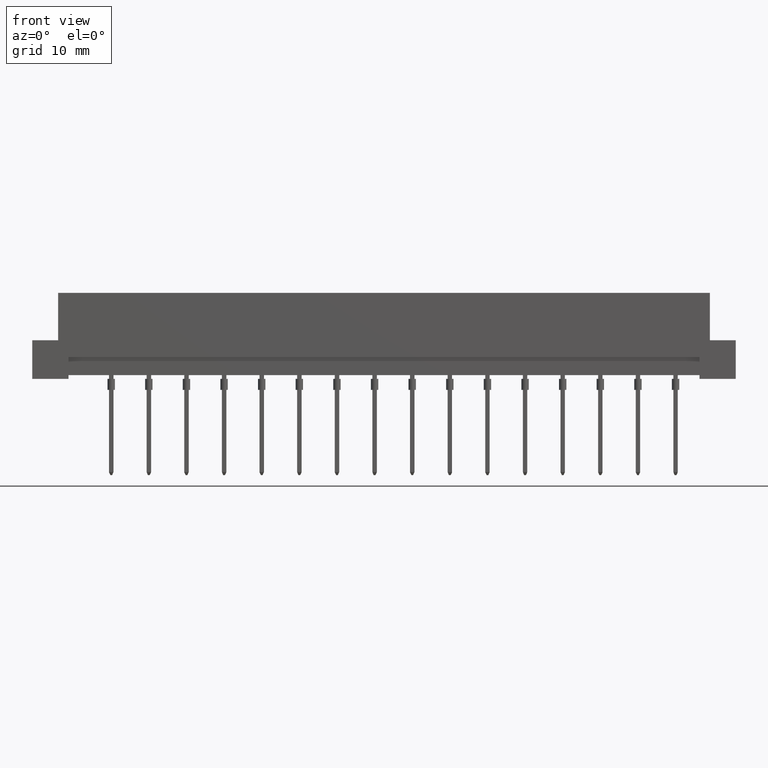
[diagram: clean part render]
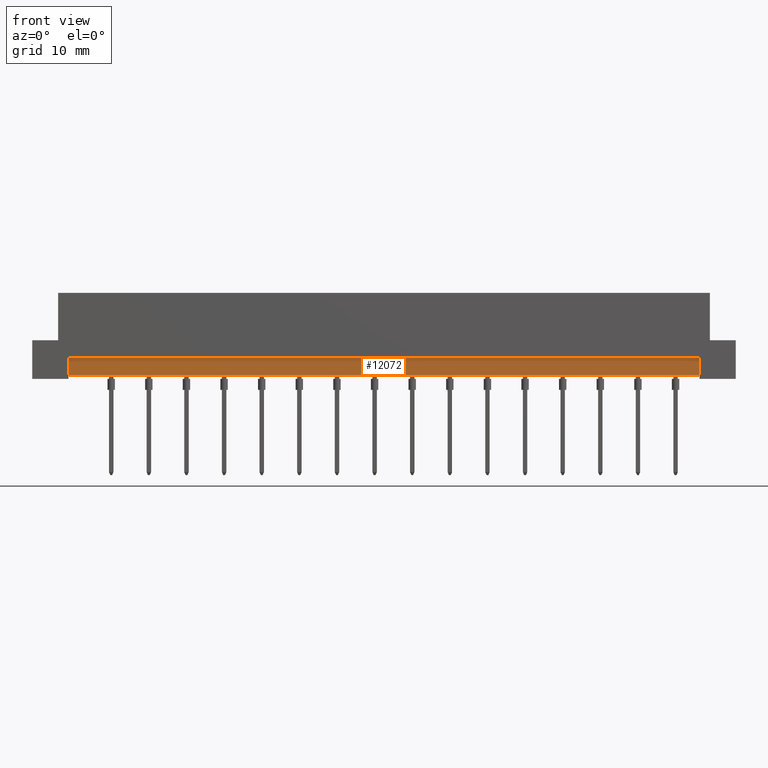
[diagram: same view with one face highlighted and labeled with its STEP entity id]
A machine part, front view. The second image highlights one B-rep face of the part: STEP entity #12072.
In plain terms, the highlighted planar face has unit normal (0, 1, 0).
Its self-contained STEP definition (entity closure, byte-faithful):
#23 = LINE ( 'NONE', #6532, #12807 ) ;
#48 = DIRECTION ( 'NONE',  ( -0.0000000000000000000, -0.0000000000000000000, -1.000000000000000000 ) ) ;
#379 = ORIENTED_EDGE ( 'NONE', *, *, #10369, .F. ) ;
#767 = ORIENTED_EDGE ( 'NONE', *, *, #7761, .T. ) ;
#1329 = DIRECTION ( 'NONE',  ( 1.000000000000000000, -0.0000000000000000000, -0.0000000000000000000 ) ) ;
#1467 = FACE_OUTER_BOUND ( 'NONE', #16488, .T. ) ;
#2675 = CARTESIAN_POINT ( 'NONE',  ( 42.60000000000000142, 1.200000000000000622, 2.899999999999999911 ) ) ;
#2967 = CARTESIAN_POINT ( 'NONE',  ( -42.60000000000000142, 1.200000000000000622, 0.5000000000000000000 ) ) ;
#3808 = CARTESIAN_POINT ( 'NONE',  ( -42.60000000000000142, 1.200000000000000622, 2.899999999999999911 ) ) ;
#4073 = PLANE ( 'NONE',  #7618 ) ;
#4816 = ORIENTED_EDGE ( 'NONE', *, *, #7230, .F. ) ;
#5505 = LINE ( 'NONE', #8185, #11724 ) ;
#6532 = CARTESIAN_POINT ( 'NONE',  ( 42.60000000000000142, 1.200000000000000622, 2.899999999999999911 ) ) ;
#6671 = DIRECTION ( 'NONE',  ( 0.0000000000000000000, 1.000000000000000000, -0.0000000000000000000 ) ) ;
#7230 = EDGE_CURVE ( 'NONE', #15557, #15286, #23, .T. ) ;
#7618 = AXIS2_PLACEMENT_3D ( 'NONE', #2675, #6671, #9423 ) ;
#7761 = EDGE_CURVE ( 'NONE', #15557, #13794, #9000, .T. ) ;
#8185 = CARTESIAN_POINT ( 'NONE',  ( 42.60000000000000142, 1.200000000000000622, 0.5000000000000000000 ) ) ;
#9000 = LINE ( 'NONE', #3808, #9494 ) ;
#9423 = DIRECTION ( 'NONE',  ( 0.0000000000000000000, 0.0000000000000000000, 1.000000000000000000 ) ) ;
#9494 = VECTOR ( 'NONE', #14361, 1000.000000000000000 ) ;
#9511 = CARTESIAN_POINT ( 'NONE',  ( 42.60000000000000142, 1.200000000000000622, 0.5000000000000000000 ) ) ;
#10369 = EDGE_CURVE ( 'NONE', #15286, #12219, #11655, .T. ) ;
#10762 = DIRECTION ( 'NONE',  ( 1.000000000000000000, 0.0000000000000000000, 0.0000000000000000000 ) ) ;
#11042 = EDGE_CURVE ( 'NONE', #13794, #12219, #5505, .T. ) ;
#11269 = CARTESIAN_POINT ( 'NONE',  ( 42.60000000000000142, 1.200000000000000622, 2.899999999999999911 ) ) ;
#11655 = LINE ( 'NONE', #13051, #13936 ) ;
#11724 = VECTOR ( 'NONE', #10762, 1000.000000000000000 ) ;
#12072 = ADVANCED_FACE ( 'NONE', ( #1467 ), #4073, .F. ) ;
#12219 = VERTEX_POINT ( 'NONE', #9511 ) ;
#12807 = VECTOR ( 'NONE', #1329, 1000.000000000000000 ) ;
#13051 = CARTESIAN_POINT ( 'NONE',  ( 42.60000000000000142, 1.200000000000000622, 2.899999999999999911 ) ) ;
#13513 = CARTESIAN_POINT ( 'NONE',  ( -42.60000000000000142, 1.200000000000000622, 2.899999999999999911 ) ) ;
#13794 = VERTEX_POINT ( 'NONE', #2967 ) ;
#13936 = VECTOR ( 'NONE', #48, 1000.000000000000000 ) ;
#14235 = ORIENTED_EDGE ( 'NONE', *, *, #11042, .T. ) ;
#14361 = DIRECTION ( 'NONE',  ( -0.0000000000000000000, -0.0000000000000000000, -1.000000000000000000 ) ) ;
#15286 = VERTEX_POINT ( 'NONE', #11269 ) ;
#15557 = VERTEX_POINT ( 'NONE', #13513 ) ;
#16488 = EDGE_LOOP ( 'NONE', ( #14235, #379, #4816, #767 ) ) ;